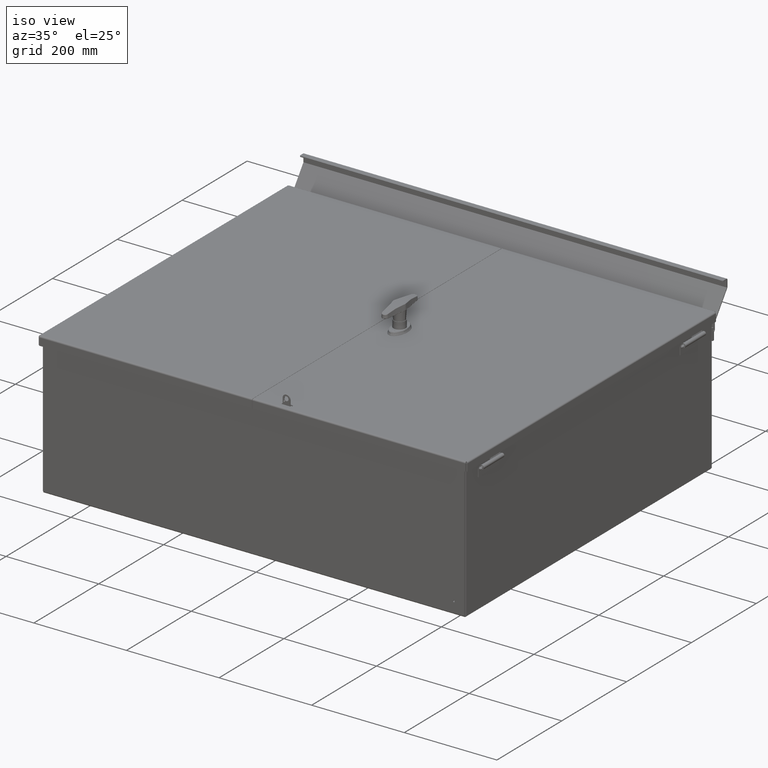
[diagram: clean part render]
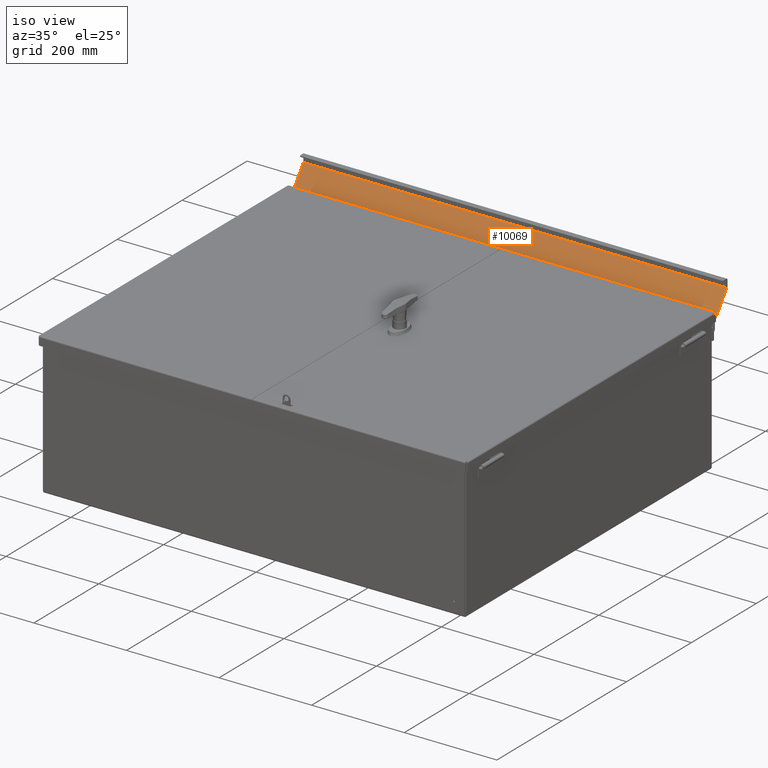
[diagram: same view with one face highlighted and labeled with its STEP entity id]
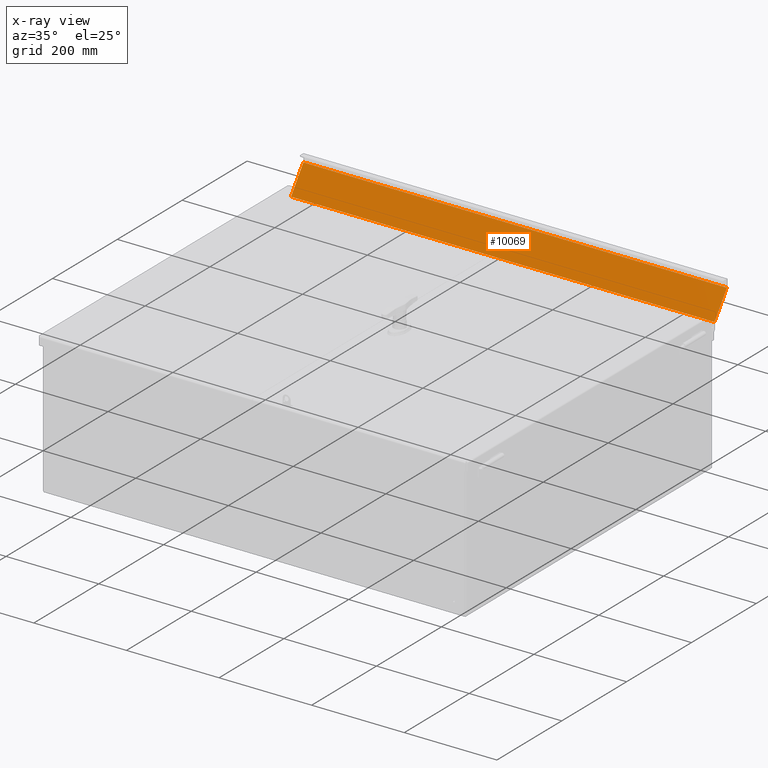
[diagram: x-ray of the same camera — body ghosted, the highlighted face saturated]
A machine part, iso view. The second image highlights one B-rep face of the part: STEP entity #10069.
The next image is the same camera in x-ray: the body ghosted, the highlighted face saturated — about 0% of this face is hidden behind the body in this view.
In plain terms, the highlighted planar face has unit normal (-0, -0.809, 0.5878).
Its self-contained STEP definition (entity closure, byte-faithful):
#843=PLANE($,#10966);
#1516=LINE($,#16364,#2264);
#1526=LINE($,#16396,#2274);
#1548=LINE($,#16474,#2296);
#1551=LINE($,#16480,#2299);
#2264=VECTOR($,#13127,2.55660440394296);
#2274=VECTOR($,#13155,2.55660440394309);
#2296=VECTOR($,#13241,36.);
#2299=VECTOR($,#13250,36.);
#3012=FACE_OUTER_BOUND($,#3709,.T.);
#3709=EDGE_LOOP($,(#8314,#8315,#8316,#8317));
#4947=VERTEX_POINT($,#16361);
#4948=VERTEX_POINT($,#16363);
#4960=VERTEX_POINT($,#16393);
#4961=VERTEX_POINT($,#16395);
#6095=EDGE_CURVE($,#4948,#4947,#1516,.T.);
#6111=EDGE_CURVE($,#4961,#4960,#1526,.T.);
#6149=EDGE_CURVE($,#4947,#4961,#1548,.T.);
#6152=EDGE_CURVE($,#4948,#4960,#1551,.T.);
#8314=ORIENTED_EDGE($,*,*,#6149,.T.);
#8315=ORIENTED_EDGE($,*,*,#6111,.T.);
#8316=ORIENTED_EDGE($,*,*,#6152,.F.);
#8317=ORIENTED_EDGE($,*,*,#6095,.T.);
#10069=ADVANCED_FACE($,(#3012),#843,.T.);
#10966=AXIS2_PLACEMENT_3D($,#16479,#13248,#13249);
#13127=DIRECTION($,(7.70755181846705E-017,-0.587785252292473,-0.809016994374947));
#13155=DIRECTION($,(-7.70755181846705E-017,0.587785252292473,0.809016994374947));
#13241=DIRECTION($,(1.,1.31128703695885E-016,0.));
#13248=DIRECTION('center_axis',(1.06085349740328E-016,-0.809016994374947,
0.587785252292473));
#13249=DIRECTION('ref_axis',(1.,0.,0.));
#13250=DIRECTION($,(1.,1.29153458344141E-015,3.58585305431558E-015));
#16361=CARTESIAN_POINT('',(2.03653456408506E-016,-1.02020258350945,-2.69190690178932));
#16363=CARTESIAN_POINT('',(3.04995380505071E-019,0.482531781074213,-0.623570491105632));
#16364=CARTESIAN_POINT($,(-1.64365640249312E-016,0.502632742416254,-0.595903891330357));
#16393=CARTESIAN_POINT('',(36.,0.482531781074293,-0.623570491105528));
#16395=CARTESIAN_POINT('',(36.,-1.02020258350944,-2.69190690178932));
#16396=CARTESIAN_POINT($,(36.,0.502632742416258,-0.595903891330357));
#16474=CARTESIAN_POINT($,(18.,-1.02020258350945,-2.69190690178932));
#16479=CARTESIAN_POINT('Origin',(3.79575949854478E-017,-1.04030354485149,
-2.71957350156459));
#16480=CARTESIAN_POINT($,(36.,0.482531781074259,-0.623570491105503));